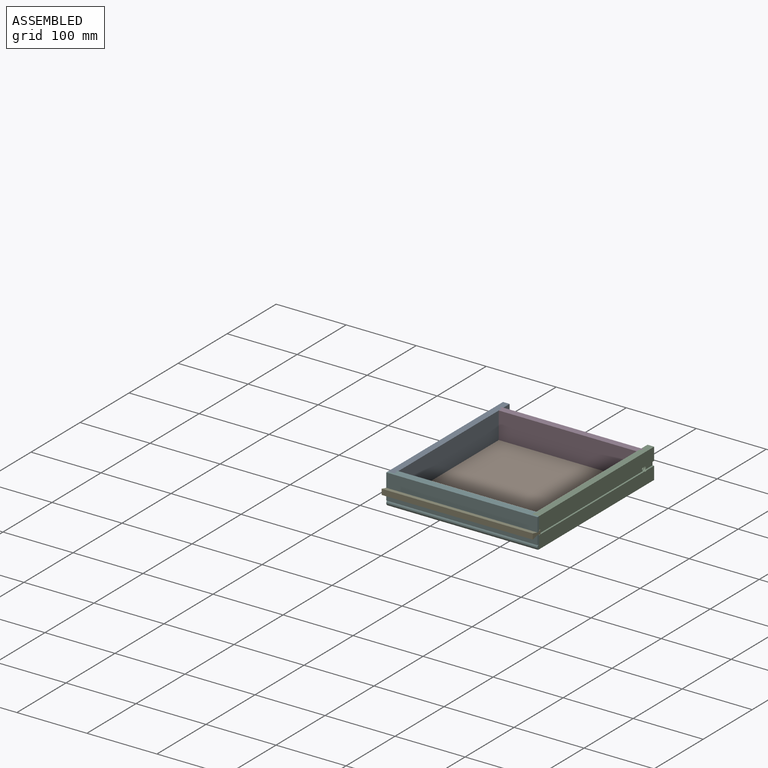
[diagram: assembled view]
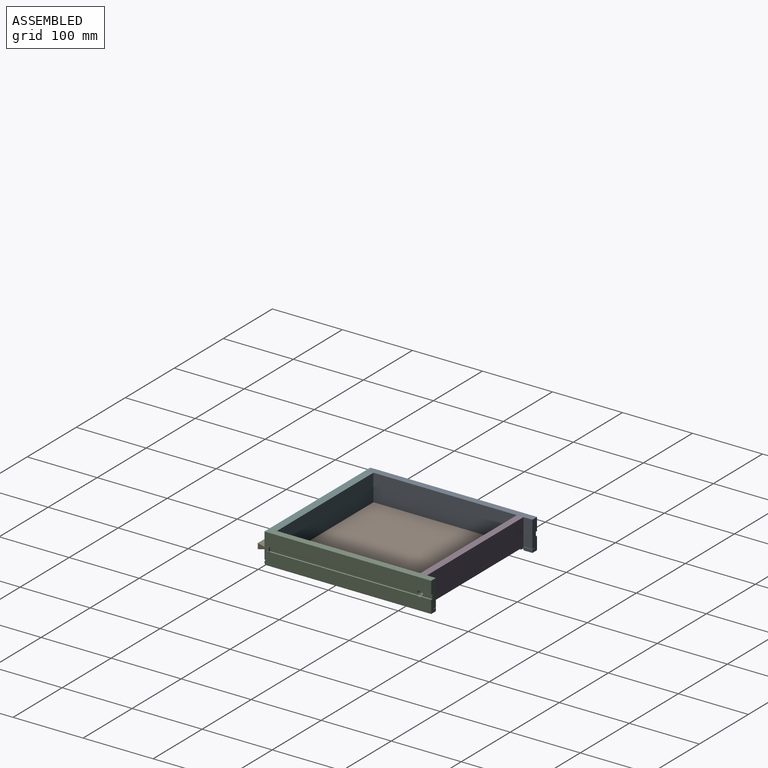
[diagram: assembled view, second angle]
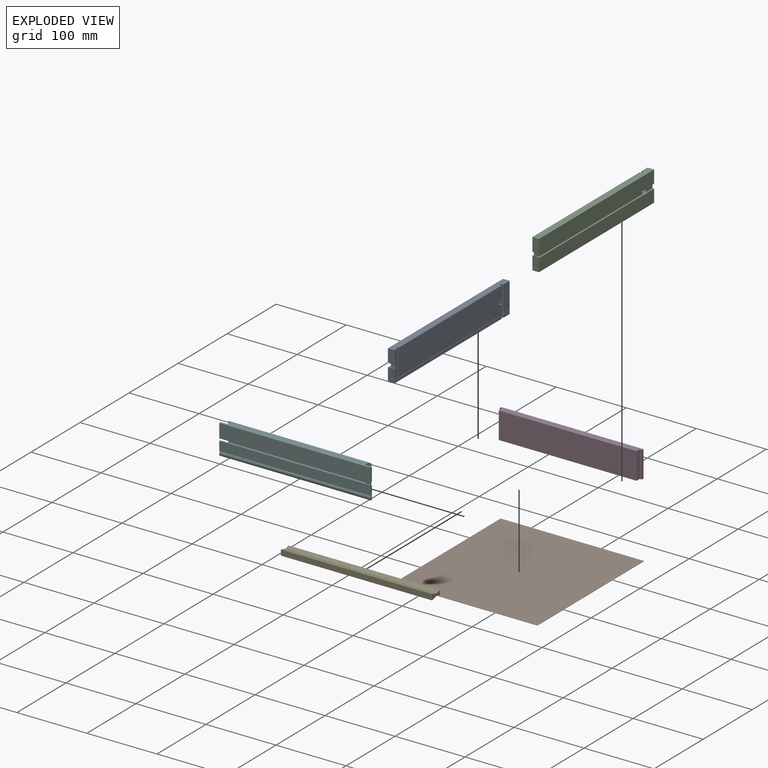
[diagram: exploded view]
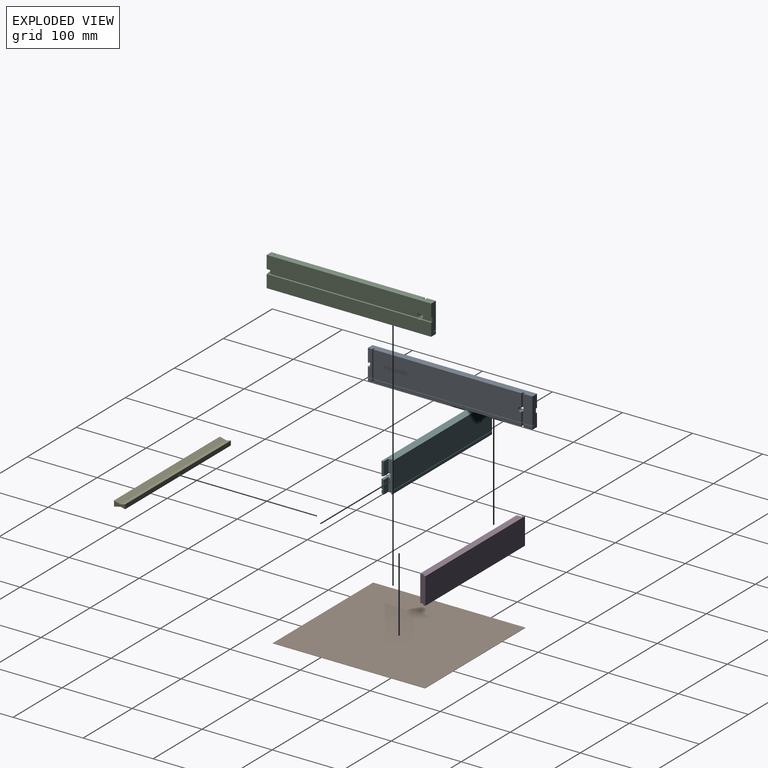
[diagram: exploded view, second angle]
ASSEMBLY  parts=6 mates=5
PART A: 43 faces, bbox 9.5x235x42.9 mm
  f0: plane 19.05x9.53mm, normal (0,-1,0), area 177.6mm2, adj f3,f6,f15,f16,f17,f32,f33,f34
  f1: plane 234.95x18.26mm, normal (-1,0,0), area 4286.7mm2, adj f2,f18,f20,f24,f37,f41
  f2: plane 19.05x9.53mm, normal (0,-1,0), area 179.5mm2, adj f1,f4,f15,f18,f36,f37
  f3: plane 7.14x3.18mm, normal (0,0.24,0.97), area 23.4mm2, adj f0,f5,f15,f38
  f4: plane 7.14x3.18mm, normal (0,0.24,-0.97), area 23.4mm2, adj f2,f5,f15,f36
  f5: plane 7.14x6.35mm, normal (0,-1,0), area 45.4mm2, adj f3,f4,f15,f35
  f6: plane 6.35x4.36mm, normal (1,0,0), area 27.7mm2, adj f0,f17,f29,f32
  f7: plane 211.14x4.36mm, normal (1,0,0), area 919.7mm2, adj f17,f25,f31,f32
  f8: plane 12.7x4.36mm, normal (1,0,0), area 55.3mm2, adj f17,f20,f26,f32
  f9: plane 13.92x3.18mm, normal (0,1,0), area 44.2mm2, adj f11,f19,f22,f33
  f10: plane 38.1x3.18mm, normal (0,-1,0), area 121mm2, adj f11,f18,f21,f33
  f11: plane 38.1x3.18mm, normal (1,0,0), area 114.8mm2, adj f9,f10,f18,f22,f27,f33
  f12: plane 38.1x3.18mm, normal (0,1,0), area 121mm2, adj f13,f15,f18,f33
  f13: plane 38.1x1.59mm, normal (1,0,0), area 60.5mm2, adj f12,f14,f18,f33
  f14: plane 38.1x3.18mm, normal (0,-1,0), area 121mm2, adj f13,f18,f19,f33
  f15: plane 38.1x6.35mm, normal (1,0,0), area 224.3mm2, adj f0,f2,f3,f4,f5,f12,f18,f33
  f16: plane 234.95x18.26mm, normal (-1,0,0), area 4286.7mm2, adj f0,f17,f20,f24,f39,f42
  f17: plane 234.95x9.53mm, normal (0,0,-1), area 2222.8mm2, adj f0,f6,f7,f8,f16,f20,f25,f26
  f18: plane 234.95x9.53mm, normal (0,0,1), area 2222.8mm2, adj f1,f2,f10,f11,f12,f13,f14,f15
  f19: plane 211.14x38.1mm, normal (1,0,0), area 8018.9mm2, adj f9,f14,f18,f22,f27,f33
  f20: plane 42.86x9.53mm, normal (0,1,0), area 391.2mm2, adj f1,f8,f16,f17,f18,f21,f32,f33
  f21: plane 38.1x12.7mm, normal (1,0,0), area 483.9mm2, adj f10,f18,f20,f33
  f22: cylinder r=3.17mm len=6.35mm, axis (-1,0,0), area 73.9mm2, adj f9,f11,f19,f23,f27
  f23: plane 7.94x7.94mm, normal (-1,0,0), area 17.8mm2, adj f22,f24
  f24: cylinder r=3.97mm len=7.94mm, axis (-1,0,0), area 83.7mm2, adj f1,f16,f23,f35,f37,f39,f40,f41
  f25: plane 4.36x3.18mm, normal (0,1,0), area 13.8mm2, adj f7,f17,f28,f32
  f26: plane 4.36x3.18mm, normal (0,-1,0), area 13.8mm2, adj f8,f17,f28,f32
  f27: plane 18.68x3.18mm, normal (0,1,0), area 59.3mm2, adj f11,f18,f19,f22
  f28: plane 4.36x3.18mm, normal (1,0,0), area 13.8mm2, adj f17,f25,f26,f32
  f29: plane 4.36x3.18mm, normal (0,1,0), area 13.8mm2, adj f6,f17,f30,f32
  f30: plane 4.36x1.59mm, normal (1,0,0), area 6.9mm2, adj f17,f29,f31,f32
  f31: plane 4.36x3.18mm, normal (0,-1,0), area 13.8mm2, adj f7,f17,f30,f32
  f32: plane 234.95x4.76mm, normal (0,0,1), area 1103.8mm2, adj f0,f6,f7,f8,f20,f25,f26,f28
  f33: plane 234.95x4.76mm, normal (0,0,-1), area 1103.8mm2, adj f0,f9,f10,f11,f12,f13,f14,f15
  f34: plane 234.95x0.41mm, normal (1,0,0), area 95.5mm2, adj f0,f20,f32,f33
  f35: plane 211.93x6.35mm, normal (-1,0,0), area 1338.7mm2, adj f5,f24,f37,f39
  f36: plane 3.18x0.79mm, normal (-1,0,0), area 1.3mm2, adj f2,f4,f37
  f37: plane 215.11x2.38mm, normal (0,0,-1), area 512.2mm2, adj f1,f2,f24,f35,f36
  f38: plane 3.18x0.79mm, normal (-1,0,0), area 1.3mm2, adj f0,f3,f39
  f39: plane 215.11x2.38mm, normal (0,0,1), area 512.2mm2, adj f0,f16,f24,f35,f38
  f40: plane 15.08x6.35mm, normal (-1,0,0), area 88.7mm2, adj f20,f24,f41,f42
  f41: plane 15.08x2.38mm, normal (0,0,-1), area 35.9mm2, adj f1,f20,f24,f40
  f42: plane 15.08x2.38mm, normal (0,0,1), area 35.9mm2, adj f16,f20,f24,f40
PART B: 6 faces, bbox 204.8x217.5x0.4 mm
  f0: plane 217.5x0.4mm, normal (1,0,0), area 86.3mm2, adj f1,f3,f4,f5
  f1: plane 204.8x0.4mm, normal (0,1,0), area 81.3mm2, adj f0,f2,f4,f5
  f2: plane 217.5x0.4mm, normal (-1,0,0), area 86.3mm2, adj f1,f3,f4,f5
  f3: plane 204.8x0.4mm, normal (0,-1,0), area 81.3mm2, adj f0,f2,f4,f5
  f4: plane 217.5x204.8mm, normal (0,0,-1), area 44544.1mm2, adj f0,f1,f2,f3
  f5: plane 217.5x204.8mm, normal (0,0,1), area 44544.1mm2, adj f0,f1,f2,f3
PART C: 43 faces, bbox 9.5x235x42.9 mm
  f0: plane 19.05x9.53mm, normal (0,-1,0), area 177.6mm2, adj f3,f6,f15,f16,f17,f32,f33,f34
  f1: plane 234.95x18.26mm, normal (1,0,0), area 4286.7mm2, adj f2,f18,f20,f24,f37,f41
  f2: plane 19.05x9.53mm, normal (0,-1,0), area 179.5mm2, adj f1,f4,f15,f18,f36,f37
  f3: plane 7.14x3.18mm, normal (0,0.24,0.97), area 23.4mm2, adj f0,f5,f15,f38
  f4: plane 7.14x3.18mm, normal (0,0.24,-0.97), area 23.4mm2, adj f2,f5,f15,f36
  f5: plane 7.14x6.35mm, normal (0,-1,0), area 45.4mm2, adj f3,f4,f15,f35
  f6: plane 6.35x4.36mm, normal (-1,0,0), area 27.7mm2, adj f0,f17,f29,f32
  f7: plane 211.14x4.36mm, normal (-1,0,0), area 919.7mm2, adj f17,f25,f31,f32
  f8: plane 12.7x4.36mm, normal (-1,0,0), area 55.3mm2, adj f17,f20,f26,f32
  f9: plane 13.92x3.18mm, normal (0,1,0), area 44.2mm2, adj f11,f19,f22,f33
  f10: plane 38.1x3.18mm, normal (0,-1,0), area 121mm2, adj f11,f18,f21,f33
  f11: plane 38.1x3.18mm, normal (-1,0,0), area 114.8mm2, adj f9,f10,f18,f22,f27,f33
  f12: plane 38.1x3.18mm, normal (0,1,0), area 121mm2, adj f13,f15,f18,f33
  f13: plane 38.1x1.59mm, normal (-1,0,0), area 60.5mm2, adj f12,f14,f18,f33
  f14: plane 38.1x3.18mm, normal (0,-1,0), area 121mm2, adj f13,f18,f19,f33
  f15: plane 38.1x6.35mm, normal (-1,0,0), area 224.3mm2, adj f0,f2,f3,f4,f5,f12,f18,f33
  f16: plane 234.95x18.26mm, normal (1,0,0), area 4286.7mm2, adj f0,f17,f20,f24,f39,f42
  f17: plane 234.95x9.53mm, normal (0,0,-1), area 2222.8mm2, adj f0,f6,f7,f8,f16,f20,f25,f26
  f18: plane 234.95x9.53mm, normal (0,0,1), area 2222.8mm2, adj f1,f2,f10,f11,f12,f13,f14,f15
  f19: plane 211.14x38.1mm, normal (-1,0,0), area 8018.9mm2, adj f9,f14,f18,f22,f27,f33
  f20: plane 42.86x9.53mm, normal (0,1,0), area 391.2mm2, adj f1,f8,f16,f17,f18,f21,f32,f33
  f21: plane 38.1x12.7mm, normal (-1,0,0), area 483.9mm2, adj f10,f18,f20,f33
  f22: cylinder r=3.17mm len=6.35mm, axis (1,0,0), area 73.9mm2, adj f9,f11,f19,f23,f27
  f23: plane 7.94x7.94mm, normal (1,0,0), area 17.8mm2, adj f22,f24
  f24: cylinder r=3.97mm len=7.94mm, axis (1,0,0), area 83.7mm2, adj f1,f16,f23,f35,f37,f39,f40,f41
  f25: plane 4.36x3.18mm, normal (0,1,0), area 13.8mm2, adj f7,f17,f28,f32
  f26: plane 4.36x3.18mm, normal (0,-1,0), area 13.8mm2, adj f8,f17,f28,f32
  f27: plane 18.68x3.18mm, normal (0,1,0), area 59.3mm2, adj f11,f18,f19,f22
  f28: plane 4.36x3.18mm, normal (-1,0,0), area 13.8mm2, adj f17,f25,f26,f32
  f29: plane 4.36x3.18mm, normal (0,1,0), area 13.8mm2, adj f6,f17,f30,f32
  f30: plane 4.36x1.59mm, normal (-1,0,0), area 6.9mm2, adj f17,f29,f31,f32
  f31: plane 4.36x3.18mm, normal (0,-1,0), area 13.8mm2, adj f7,f17,f30,f32
  f32: plane 234.95x4.76mm, normal (0,0,1), area 1103.8mm2, adj f0,f6,f7,f8,f20,f25,f26,f28
  f33: plane 234.95x4.76mm, normal (0,0,-1), area 1103.8mm2, adj f0,f9,f10,f11,f12,f13,f14,f15
  f34: plane 234.95x0.41mm, normal (-1,0,0), area 95.5mm2, adj f0,f20,f32,f33
  f35: plane 211.93x6.35mm, normal (1,0,0), area 1338.7mm2, adj f5,f24,f37,f39
  f36: plane 3.18x0.79mm, normal (1,0,0), area 1.3mm2, adj f2,f4,f37
  f37: plane 215.11x2.38mm, normal (0,0,-1), area 512.2mm2, adj f1,f2,f24,f35,f36
  f38: plane 3.18x0.79mm, normal (1,0,0), area 1.3mm2, adj f0,f3,f39
  f39: plane 215.11x2.38mm, normal (0,0,1), area 512.2mm2, adj f0,f16,f24,f35,f38
  f40: plane 15.08x6.35mm, normal (1,0,0), area 88.7mm2, adj f20,f24,f41,f42
  f41: plane 15.08x2.38mm, normal (0,0,-1), area 35.9mm2, adj f1,f20,f24,f40
  f42: plane 15.08x2.38mm, normal (0,0,1), area 35.9mm2, adj f16,f20,f24,f40
PART D: 10 faces, bbox 203.2x9.5x38.1 mm
  f0: plane 38.1x6.35mm, normal (1,0,0), area 241.9mm2, adj f1,f3,f5,f6
  f1: plane 203.2x9.53mm, normal (0,0,1), area 1895.2mm2, adj f0,f2,f4,f5,f6,f7,f8,f9
  f2: plane 38.1x6.35mm, normal (-1,0,0), area 241.9mm2, adj f1,f3,f5,f9
  f3: plane 203.2x9.53mm, normal (0,0,-1), area 1895.2mm2, adj f0,f2,f4,f5,f6,f7,f8,f9
  f4: plane 203.2x38.1mm, normal (0,1,0), area 7741.9mm2, adj f1,f3,f7,f8
  f5: plane 196.85x38.1mm, normal (0,-1,0), area 7500mm2, adj f0,f1,f2,f3
  f6: plane 38.1x3.18mm, normal (0,-1,0), area 121mm2, adj f0,f1,f3,f7
  f7: plane 38.1x3.18mm, normal (1,0,0), area 121mm2, adj f1,f3,f4,f6
  f8: plane 38.1x3.18mm, normal (-1,0,0), area 121mm2, adj f1,f3,f4,f9
  f9: plane 38.1x3.18mm, normal (0,-1,0), area 121mm2, adj f1,f2,f3,f8
PART E: 8 faces, bbox 215.9x15.9x7.9 mm
  f0: plane 215.9x6.35mm, normal (0,1,0), area 1371mm2, adj f1,f5,f6,f7
  f1: plane 215.9x6.35mm, normal (0,-0.24,0.97), area 1412.9mm2, adj f0,f2,f6,f7
  f2: plane 215.9x9.53mm, normal (0,0.24,0.97), area 2119.4mm2, adj f1,f3,f6,f7
  f3: plane 215.9x7.93mm, normal (0,-1,0), area 1712.8mm2, adj f2,f4,f6,f7
  f4: plane 215.9x9.53mm, normal (0,0.24,-0.97), area 2119.4mm2, adj f3,f5,f6,f7
  f5: plane 215.9x6.35mm, normal (0,-0.24,-0.97), area 1412.9mm2, adj f0,f4,f6,f7
  f6: plane 15.88x7.93mm, normal (1,0,0), area 83.2mm2, adj f0,f1,f2,f3,f4,f5
  f7: plane 15.88x7.93mm, normal (-1,0,0), area 83.2mm2, adj f0,f1,f2,f3,f4,f5
PART F: 32 faces, bbox 215.9x11.1x42.9 mm
  f0: plane 19.84x3.18mm, normal (-1,0,0), area 58.3mm2, adj f1,f6,f15,f23,f30,f31
  f1: plane 215.9x9.53mm, normal (0,0,-1), area 1915.3mm2, adj f0,f3,f4,f16,f18,f20,f22,f23
  f2: plane 203.2x38.1mm, normal (0,1,0), area 7741.9mm2, adj f5,f10,f19,f28
  f3: plane 203.2x4.36mm, normal (0,1,0), area 885.2mm2, adj f1,f9,f18,f27
  f4: plane 19.84x3.18mm, normal (1,0,0), area 58.3mm2, adj f1,f6,f15,f16,f30,f31
  f5: plane 215.9x11.11mm, normal (0,0,1), area 2258.1mm2, adj f2,f12,f13,f14,f17,f19,f21,f22
  f6: plane 215.9x6.35mm, normal (0,0.24,0.97), area 1350.6mm2, adj f0,f4,f7,f15,f16,f22,f23,f29
  f7: plane 196.85x6.35mm, normal (0,-1,0), area 1250mm2, adj f6,f8,f22,f29
  f8: plane 215.9x6.35mm, normal (0,0.24,-0.97), area 1350.6mm2, adj f7,f12,f13,f14,f17,f22,f24,f29
  f9: plane 203.2x4.76mm, normal (0,0,1), area 947.6mm2, adj f3,f11,f18,f20,f22,f25,f27,f29
  f10: plane 203.2x4.76mm, normal (0,0,-1), area 947.6mm2, adj f2,f11,f19,f21,f22,f26,f28,f29
  f11: plane 196.85x0.41mm, normal (0,1,0), area 80mm2, adj f9,f10,f22,f29
  f12: plane 19.84x3.18mm, normal (-1,0,0), area 61.7mm2, adj f5,f8,f13,f24
  f13: plane 215.9x19.84mm, normal (0,-1,0), area 4283.3mm2, adj f5,f8,f12,f14
  f14: plane 19.84x3.18mm, normal (1,0,0), area 61.7mm2, adj f5,f8,f13,f17
  f15: plane 215.9x13.28mm, normal (0,-1,0), area 2866.4mm2, adj f0,f4,f6,f31
  f16: plane 19.05x9.53mm, normal (0,1,0), area 181.4mm2, adj f1,f4,f6,f22
  f17: plane 19.05x9.53mm, normal (0,1,0), area 181.4mm2, adj f5,f8,f14,f22
  f18: plane 4.36x1.59mm, normal (1,0,0), area 6.9mm2, adj f1,f3,f9,f20
  f19: plane 38.1x1.59mm, normal (1,0,0), area 60.5mm2, adj f2,f5,f10,f21
  f20: plane 4.36x3.18mm, normal (0,-1,0), area 13.8mm2, adj f1,f9,f18,f22
  f21: plane 38.1x3.18mm, normal (0,-1,0), area 121mm2, adj f5,f10,f19,f22
  f22: plane 42.86x6.35mm, normal (1,0,0), area 253.2mm2, adj f1,f5,f6,f7,f8,f9,f10,f11
  f23: plane 19.05x9.53mm, normal (0,1,0), area 181.4mm2, adj f0,f1,f6,f29
  f24: plane 19.05x9.53mm, normal (0,1,0), area 181.4mm2, adj f5,f8,f12,f29
  f25: plane 4.36x3.18mm, normal (0,-1,0), area 13.8mm2, adj f1,f9,f27,f29
  f26: plane 38.1x3.18mm, normal (0,-1,0), area 121mm2, adj f5,f10,f28,f29
  f27: plane 4.36x1.59mm, normal (-1,0,0), area 6.9mm2, adj f1,f3,f9,f25
  f28: plane 38.1x1.59mm, normal (-1,0,0), area 60.5mm2, adj f2,f5,f10,f26
  f29: plane 42.86x6.35mm, normal (-1,0,0), area 253.2mm2, adj f1,f5,f6,f7,f8,f9,f10,f11
  f30: cylinder r=3.97mm len=215.9mm, axis (1,0,0), area 1671.1mm2, adj f0,f1,f4,f31
  f31: plane 215.9x1.9mm, normal (0,0,-1), area 410.5mm2, adj f0,f4,f15,f30
PLACE A t=(108.99,-67.07,10.77)mm
PLACE B t=(64.54,46.43,91.74)mm
PLACE C t=(172.49,-67.07,10.77)mm
PLACE D t=(64.54,-159.15,34.59)mm
PLACE E t=(64.54,-70.25,32.21)mm
PLACE F t=(64.54,-70.25,32.21)mm
MATE fastened E.f0 <-> F.f7  axis (0,1,0) through (64.54,-63.9,32.21)mm
MATE fastened A.f18 <-> F.f5  axis (0,0,1) through (-33.88,-63.9,53.64)mm
MATE fastened C.f18 <-> F.f5  axis (0,0,1) through (162.97,-63.9,53.64)mm
MATE fastened D.f1 <-> A.f18  axis (0,0,1) through (-33.88,152,53.64)mm
MATE fastened B.f5 <-> D.f3  axis (0,0,1) through (64.54,155.18,15.54)mm
